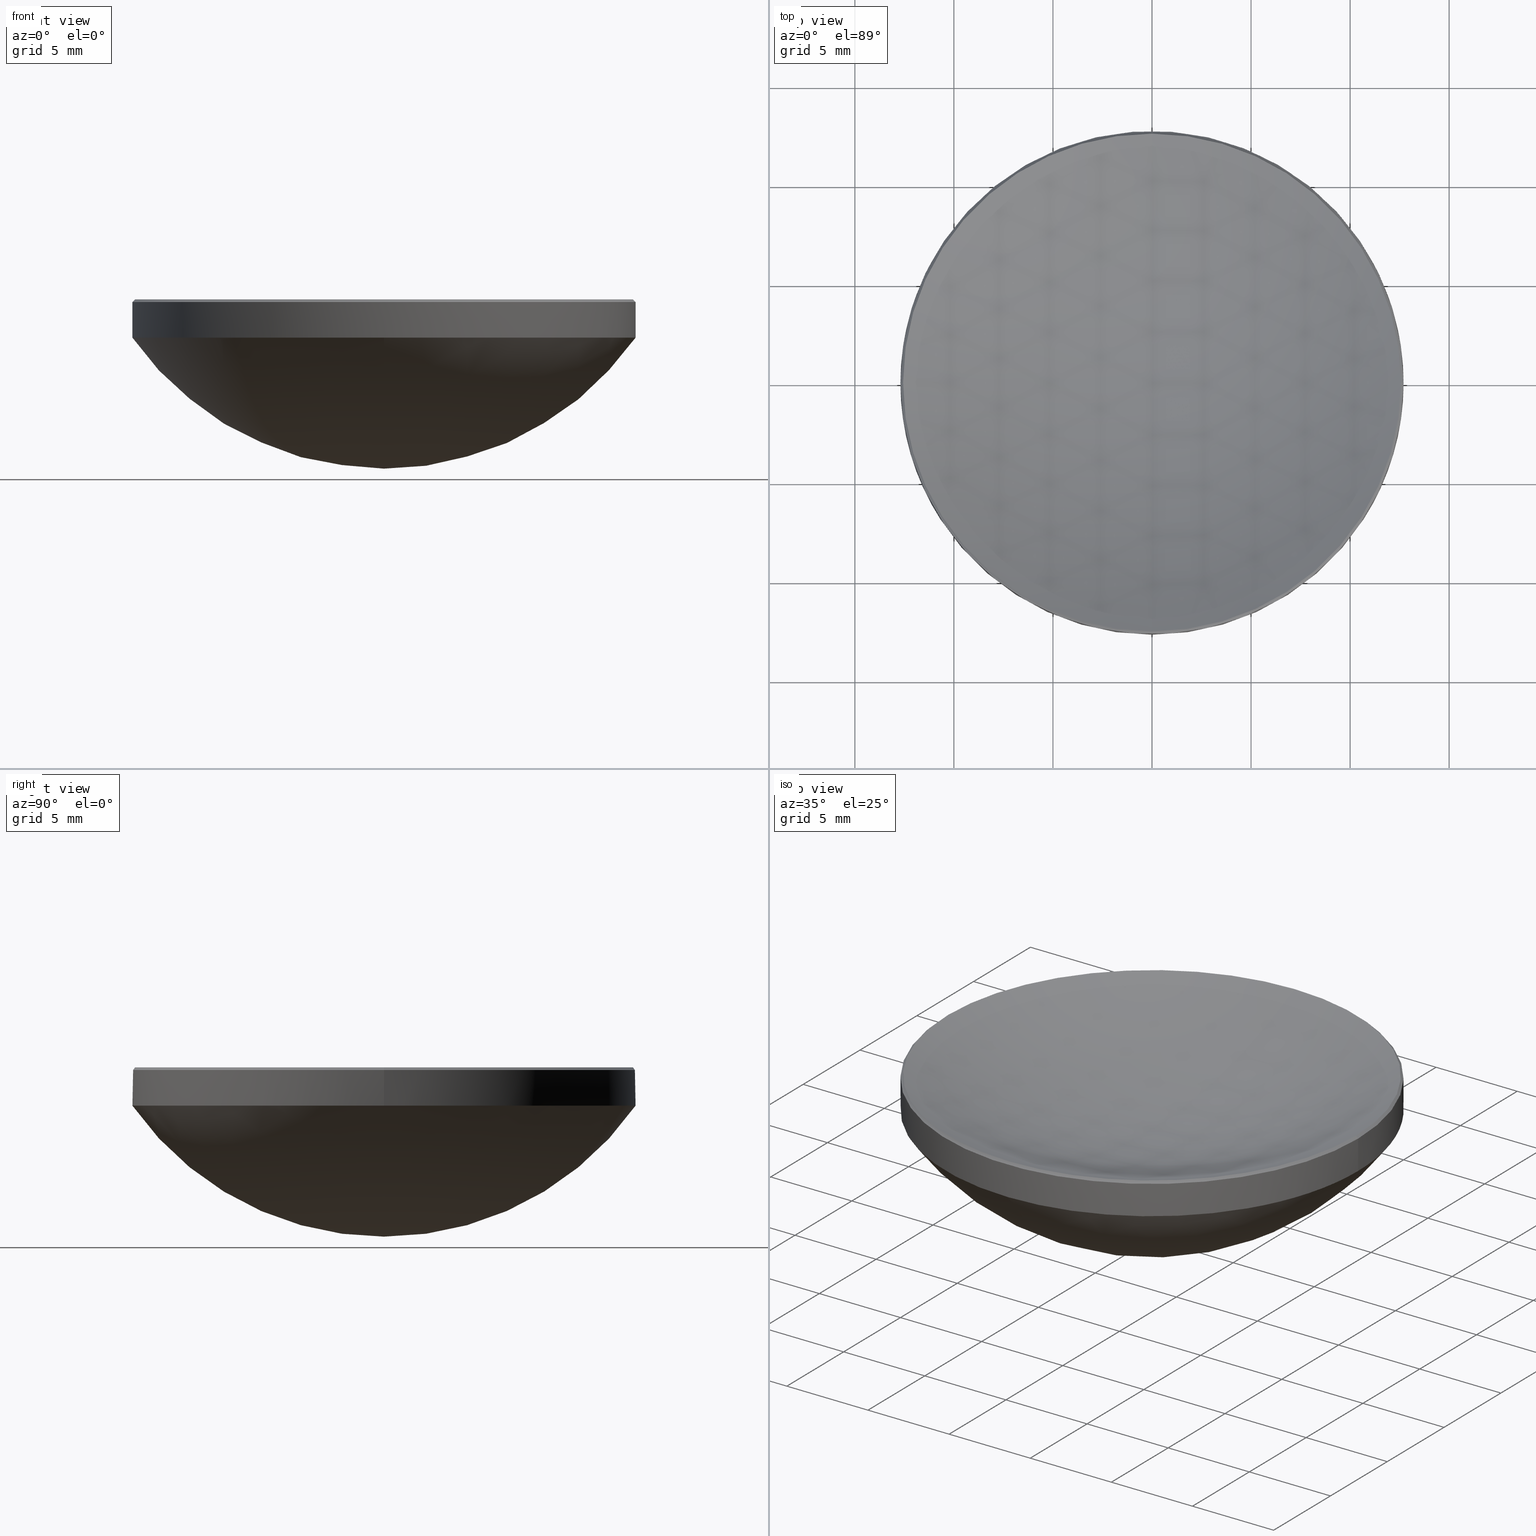
[diagram: canonical four-view strip — front | top / right | iso, engineering-drawing reading convention]
A machine part, canonical four-view strip (front | top / right | iso — engineering-drawing reading convention). The complete STEP part file that produces these views, byte-faithful:
ISO-10303-21;
HEADER;
FILE_DESCRIPTION (( 'STEP AP214' ),
    '1' );
FILE_NAME ('GLM5-025B-075-IR1.STEP',
    '2024-08-09T03:09:39',
    ( 'Windows User' ),
    ( 'P R C' ),
    'SwSTEP 2.0',
    'SolidWorks 2022',
    '' );
FILE_SCHEMA (( 'AUTOMOTIVE_DESIGN' ));
ENDSEC;

DATA;
#1 = STYLED_ITEM ( 'NONE', ( #249 ), #150 ) ;
#2 = ORIENTED_EDGE ( 'NONE', *, *, #112, .T. ) ;
#3 = VECTOR ( 'NONE', #250, 1000.000000000000000 ) ;
#4 = ORIENTED_EDGE ( 'NONE', *, *, #64, .T. ) ;
#5 = DIRECTION ( 'NONE',  ( 0.000000000000000000, 0.000000000000000000, 1.000000000000000000 ) ) ;
#6 = ORIENTED_EDGE ( 'NONE', *, *, #167, .F. ) ;
#7 = EDGE_CURVE ( 'NONE', #265, #219, #257, .T. ) ;
#8 = ORIENTED_EDGE ( 'NONE', *, *, #40, .T. ) ;
#9 = VERTEX_POINT ( 'NONE', #266 ) ;
#10 = CARTESIAN_POINT ( 'NONE',  ( -1.539033449312763562E-15, -12.56716181665030874, 11.93283818334969126 ) ) ;
#11 = CARTESIAN_POINT ( 'NONE',  ( 0.000000000000000000, 0.000000000000000000, 11.93283818334968771 ) ) ;
#12 = EDGE_CURVE ( 'NONE', #198, #106, #65, .T. ) ;
#13 = CARTESIAN_POINT ( 'NONE',  ( 0.000000000000000000, 12.69999999999999574, 10.00000000000000000 ) ) ;
#14 = CYLINDRICAL_SURFACE ( 'NONE', #170, 12.69999999999999929 ) ;
#15 = CIRCLE ( 'NONE', #270, 12.56716181665030341 ) ;
#16 = DIRECTION ( 'NONE',  ( -0.000000000000000000, -0.000000000000000000, -1.000000000000000000 ) ) ;
#17 = FILL_AREA_STYLE_COLOUR ( '', #125 ) ;
#18 = PRESENTATION_LAYER_ASSIGNMENT (  '', '', ( #259 ) ) ;
#19 = FACE_OUTER_BOUND ( 'NONE', #93, .T. ) ;
#20 = ORIENTED_EDGE ( 'NONE', *, *, #140, .T. ) ;
#21 = AXIS2_PLACEMENT_3D ( 'NONE', #247, #141, #226 ) ;
#22 = EDGE_CURVE ( 'NONE', #197, #242, #192, .T. ) ;
#23 = EDGE_LOOP ( 'NONE', ( #175, #267, #216, #6 ) ) ;
#24 = ORIENTED_EDGE ( 'NONE', *, *, #167, .T. ) ;
#25 = AXIS2_PLACEMENT_3D ( 'NONE', #69, #237, #239 ) ;
#26 = ORIENTED_EDGE ( 'NONE', *, *, #90, .F. ) ;
#27 = CIRCLE ( 'NONE', #92, 27.99999999999999645 ) ;
#28 = ORIENTED_EDGE ( 'NONE', *, *, #258, .T. ) ;
#29 = ORIENTED_EDGE ( 'NONE', *, *, #118, .T. ) ;
#30 = UNCERTAINTY_MEASURE_WITH_UNIT (LENGTH_MEASURE( 1.000000000000000082E-05 ), #227, 'distance_accuracy_value', 'NONE');
#31 = DIRECTION ( 'NONE',  ( 1.000000000000000000, 0.000000000000000000, 0.000000000000000000 ) ) ;
#32 = ADVANCED_FACE ( 'NONE', ( #174 ), #89, .T. ) ;
#33 = FACE_OUTER_BOUND ( 'NONE', #189, .T. ) ;
#34 = CIRCLE ( 'NONE', #59, 12.69999999999999929 ) ;
#35 = SURFACE_STYLE_USAGE ( .BOTH. , #200 ) ;
#36 = CARTESIAN_POINT ( 'NONE',  ( -12.69999999999999929, 0.000000000000000000, 20.00000000000000000 ) ) ;
#37 = DIRECTION ( 'NONE',  ( 1.000000000000000000, 0.000000000000000000, 0.000000000000000000 ) ) ;
#38 = FILL_AREA_STYLE ('',( #17 ) ) ;
#39 = FILL_AREA_STYLE ('',( #164 ) ) ;
#40 = EDGE_CURVE ( 'NONE', #48, #222, #15, .T. ) ;
#41 = CARTESIAN_POINT ( 'NONE',  ( 0.000000000000000000, 0.000000000000000000, 36.95415797016601545 ) ) ;
#42 = CARTESIAN_POINT ( 'NONE',  ( 0.000000000000000000, 12.56716181665030874, 11.93283818334969126 ) ) ;
#43 =( GEOMETRIC_REPRESENTATION_CONTEXT ( 3 ) GLOBAL_UNCERTAINTY_ASSIGNED_CONTEXT ( ( #248 ) ) GLOBAL_UNIT_ASSIGNED_CONTEXT ( ( #80, #147, #209 ) ) REPRESENTATION_CONTEXT ( 'NONE', 'WORKASPACE' ) );
#44 = EDGE_CURVE ( 'NONE', #242, #187, #218, .T. ) ;
#45 = EDGE_LOOP ( 'NONE', ( #154, #130, #166, #28 ) ) ;
#46 = AXIS2_PLACEMENT_3D ( 'NONE', #104, #117, #181 ) ;
#47 = CARTESIAN_POINT ( 'NONE',  ( 0.000000000000000000, 0.000000000000000000, 36.95415797016601545 ) ) ;
#48 = VERTEX_POINT ( 'NONE', #10 ) ;
#49 = ORIENTED_EDGE ( 'NONE', *, *, #107, .T. ) ;
#50 = EDGE_CURVE ( 'NONE', #111, #219, #100, .T. ) ;
#51 = SHAPE_DEFINITION_REPRESENTATION ( #138, #150 ) ;
#52 = ORIENTED_EDGE ( 'NONE', *, *, #214, .F. ) ;
#53 = ORIENTED_EDGE ( 'NONE', *, *, #214, .T. ) ;
#54 = DIRECTION ( 'NONE',  ( 0.000000000000000000, 0.000000000000000000, -1.000000000000000000 ) ) ;
#55 = CARTESIAN_POINT ( 'NONE',  ( 0.000000000000000000, 0.000000000000000000, 11.79999999999999183 ) ) ;
#56 = FACE_OUTER_BOUND ( 'NONE', #279, .T. ) ;
#57 = FACE_OUTER_BOUND ( 'NONE', #153, .T. ) ;
#58 = DIRECTION ( 'NONE',  ( 1.000000000000000000, 0.000000000000000000, 0.000000000000000000 ) ) ;
#59 = AXIS2_PLACEMENT_3D ( 'NONE', #55, #54, #137 ) ;
#60 = EDGE_CURVE ( 'NONE', #111, #106, #86, .T. ) ;
#61 = DIRECTION ( 'NONE',  ( 0.000000000000000000, 1.000000000000000000, 0.000000000000000000 ) ) ;
#62 = CYLINDRICAL_SURFACE ( 'NONE', #88, 12.69999999999999929 ) ;
#63 = PRESENTATION_STYLE_ASSIGNMENT (( #35 ) ) ;
#64 = EDGE_CURVE ( 'NONE', #9, #265, #98, .T. ) ;
#65 = CIRCLE ( 'NONE', #236, 12.69999999999999751 ) ;
#66 = VECTOR ( 'NONE', #144, 999.9999999999998863 ) ;
#67 = DIRECTION ( 'NONE',  ( -1.000000000000000000, 0.000000000000000000, 0.000000000000000000 ) ) ;
#68 = PRODUCT_DEFINITION ( 'δ֪', '', #235, #157 ) ;
#69 = CARTESIAN_POINT ( 'NONE',  ( 0.000000000000000000, 0.000000000000000000, 10.00000000000000000 ) ) ;
#70 = DIRECTION ( 'NONE',  ( 0.000000000000000000, 0.000000000000000000, -1.000000000000000000 ) ) ;
#71 = CARTESIAN_POINT ( 'NONE',  ( 0.000000000000000000, 0.000000000000000000, 10.00000000000000000 ) ) ;
#72 = ORIENTED_EDGE ( 'NONE', *, *, #188, .F. ) ;
#73 = CARTESIAN_POINT ( 'NONE',  ( 0.000000000000000000, 0.000000000000000000, 18.88594395660922487 ) ) ;
#74 = CARTESIAN_POINT ( 'NONE',  ( 0.000000000000000000, 0.000000000000000000, 11.93283818334969126 ) ) ;
#75 = AXIS2_PLACEMENT_3D ( 'NONE', #262, #67, #114 ) ;
#76 = UNCERTAINTY_MEASURE_WITH_UNIT (LENGTH_MEASURE( 1.000000000000000082E-05 ), #84, 'distance_accuracy_value', 'NONE');
#77 = SURFACE_STYLE_USAGE ( .BOTH. , #213 ) ;
#78 = DIRECTION ( 'NONE',  ( 0.000000000000000000, 0.000000000000000000, -1.000000000000000000 ) ) ;
#79 = CARTESIAN_POINT ( 'NONE',  ( 12.69999999999999929, 1.555301434917138433E-15, 11.79999999999999183 ) ) ;
#80 =( LENGTH_UNIT ( ) NAMED_UNIT ( * ) SI_UNIT ( .MILLI., .METRE. ) );
#81 = AXIS2_PLACEMENT_3D ( 'NONE', #11, #148, #105 ) ;
#82 = CARTESIAN_POINT ( 'NONE',  ( -1.555301434917138038E-15, -12.69999999999999574, 10.00000000000000000 ) ) ;
#83 = DIRECTION ( 'NONE',  ( -1.000000000000000000, 0.000000000000000000, 0.000000000000000000 ) ) ;
#84 =( LENGTH_UNIT ( ) NAMED_UNIT ( * ) SI_UNIT ( .MILLI., .METRE. ) );
#85 = CIRCLE ( 'NONE', #151, 12.69999999999999751 ) ;
#86 = CIRCLE ( 'NONE', #126, 15.49999999999999645 ) ;
#87 = EDGE_CURVE ( 'NONE', #9, #172, #243, .T. ) ;
#88 = AXIS2_PLACEMENT_3D ( 'NONE', #145, #16, #185 ) ;
#89 = SPHERICAL_SURFACE ( 'NONE', #75, 15.49999999999999645 ) ;
#90 = EDGE_CURVE ( 'NONE', #222, #172, #143, .T. ) ;
#91 = ORIENTED_EDGE ( 'NONE', *, *, #112, .F. ) ;
#92 = AXIS2_PLACEMENT_3D ( 'NONE', #278, #115, #234 ) ;
#93 = EDGE_LOOP ( 'NONE', ( #95, #20, #8, #49 ) ) ;
#94 = ORIENTED_EDGE ( 'NONE', *, *, #258, .F. ) ;
#95 = ORIENTED_EDGE ( 'NONE', *, *, #22, .F. ) ;
#96 = CARTESIAN_POINT ( 'NONE',  ( 0.000000000000000000, 0.000000000000000000, 18.88594395660922487 ) ) ;
#97 = CARTESIAN_POINT ( 'NONE',  ( 12.69999999999999751, 1.555301434917138235E-15, 10.00000000000000000 ) ) ;
#98 = LINE ( 'NONE', #36, #3 ) ;
#99 = DIRECTION ( 'NONE',  ( 1.000000000000000000, 0.000000000000000000, 0.000000000000000000 ) ) ;
#100 = CIRCLE ( 'NONE', #206, 15.49999999999999645 ) ;
#101 = DIRECTION ( 'NONE',  ( 0.000000000000000000, 1.000000000000000000, 0.000000000000000000 ) ) ;
#102 =( NAMED_UNIT ( * ) SI_UNIT ( $, .STERADIAN. ) SOLID_ANGLE_UNIT ( ) );
#103 = AXIS2_PLACEMENT_3D ( 'NONE', #274, #83, #61 ) ;
#104 = CARTESIAN_POINT ( 'NONE',  ( 0.000000000000000000, 0.000000000000000000, 11.93283818334968771 ) ) ;
#105 = DIRECTION ( 'NONE',  ( -1.000000000000000000, 0.000000000000000000, 0.000000000000000000 ) ) ;
#106 = VERTEX_POINT ( 'NONE', #13 ) ;
#107 = EDGE_CURVE ( 'NONE', #222, #242, #238, .T. ) ;
#108 = CLOSED_SHELL ( 'NONE', ( #128, #208, #282, #261, #149, #251, #32, #183 ) ) ;
#109 = ORIENTED_EDGE ( 'NONE', *, *, #40, .F. ) ;
#110 = ORIENTED_EDGE ( 'NONE', *, *, #107, .F. ) ;
#111 = VERTEX_POINT ( 'NONE', #156 ) ;
#112 = EDGE_CURVE ( 'NONE', #172, #9, #34, .T. ) ;
#113 = ORIENTED_EDGE ( 'NONE', *, *, #7, .F. ) ;
#114 = DIRECTION ( 'NONE',  ( 0.000000000000000000, 1.000000000000000000, 0.000000000000000000 ) ) ;
#115 = DIRECTION ( 'NONE',  ( -1.000000000000000000, 1.224646799147353207E-16, 0.000000000000000000 ) ) ;
#116 = CARTESIAN_POINT ( 'NONE',  ( 0.000000000000000000, 0.000000000000000000, 10.00000000000000000 ) ) ;
#117 = DIRECTION ( 'NONE',  ( 0.000000000000000000, 0.000000000000000000, -1.000000000000000000 ) ) ;
#118 = EDGE_CURVE ( 'NONE', #106, #265, #85, .T. ) ;
#119 = DIRECTION ( 'NONE',  ( 1.000000000000000000, 0.000000000000000000, 0.000000000000000000 ) ) ;
#120 = SPHERICAL_SURFACE ( 'NONE', #103, 15.49999999999999645 ) ;
#121 = DIRECTION ( 'NONE',  ( -1.000000000000000000, 0.000000000000000000, 0.000000000000000000 ) ) ;
#122 = AXIS2_PLACEMENT_3D ( 'NONE', #41, #121, #101 ) ;
#123 = DIRECTION ( 'NONE',  ( -0.000000000000000000, -0.000000000000000000, 1.000000000000000000 ) ) ;
#124 = SURFACE_STYLE_FILL_AREA ( #38 ) ;
#125 = COLOUR_RGB ( '',1.000000000000000000, 1.000000000000000000, 1.000000000000000000 ) ;
#126 = AXIS2_PLACEMENT_3D ( 'NONE', #73, #268, #162 ) ;
#127 = AXIS2_PLACEMENT_3D ( 'NONE', #228, #159, #244 ) ;
#128 = ADVANCED_FACE ( 'NONE', ( #33 ), #215, .T. ) ;
#129 = ORIENTED_EDGE ( 'NONE', *, *, #44, .F. ) ;
#130 = ORIENTED_EDGE ( 'NONE', *, *, #22, .T. ) ;
#131 = ORIENTED_EDGE ( 'NONE', *, *, #188, .T. ) ;
#132 = PRODUCT_CONTEXT ( 'NONE', #230, 'mechanical' ) ;
#133 = ORIENTED_EDGE ( 'NONE', *, *, #64, .F. ) ;
#134 = COLOUR_RGB ( '',1.000000000000000000, 1.000000000000000000, 1.000000000000000000 ) ;
#135 = APPLICATION_PROTOCOL_DEFINITION ( 'draft international standard', 'automotive_design', 1998, #280 ) ;
#136 = EDGE_LOOP ( 'NONE', ( #26, #109, #94, #53, #91 ) ) ;
#137 = DIRECTION ( 'NONE',  ( 1.000000000000000000, 0.000000000000000000, 0.000000000000000000 ) ) ;
#138 = PRODUCT_DEFINITION_SHAPE ( 'NONE', 'NONE',  #68 ) ;
#139 = DIRECTION ( 'NONE',  ( 1.000000000000000000, 0.000000000000000000, 0.000000000000000000 ) ) ;
#140 = EDGE_CURVE ( 'NONE', #197, #48, #27, .T. ) ;
#141 = DIRECTION ( 'NONE',  ( -1.000000000000000000, 0.000000000000000000, 0.000000000000000000 ) ) ;
#142 = VECTOR ( 'NONE', #277, 1000.000000000000000 ) ;
#143 = LINE ( 'NONE', #178, #253 ) ;
#144 = DIRECTION ( 'NONE',  ( -0.7071067811865430208, 0.000000000000000000, -0.7071067811865521247 ) ) ;
#145 = CARTESIAN_POINT ( 'NONE',  ( 0.000000000000000000, 0.000000000000000000, 20.00000000000000000 ) ) ;
#146 = CARTESIAN_POINT ( 'NONE',  ( 0.000000000000000000, 0.000000000000000000, 20.00000000000000000 ) ) ;
#147 =( NAMED_UNIT ( * ) PLANE_ANGLE_UNIT ( ) SI_UNIT ( $, .RADIAN. ) );
#148 = DIRECTION ( 'NONE',  ( 0.000000000000000000, 0.000000000000000000, -1.000000000000000000 ) ) ;
#149 = ADVANCED_FACE ( 'NONE', ( #56 ), #14, .T. ) ;
#150 = ADVANCED_BREP_SHAPE_REPRESENTATION ( 'GLM5-025B-075-IR1', ( #169, #212 ), #43 ) ;
#151 = AXIS2_PLACEMENT_3D ( 'NONE', #116, #223, #139 ) ;
#152 = ORIENTED_EDGE ( 'NONE', *, *, #7, .T. ) ;
#153 = EDGE_LOOP ( 'NONE', ( #281, #131, #240, #29, #133 ) ) ;
#154 = ORIENTED_EDGE ( 'NONE', *, *, #140, .F. ) ;
#155 = DIRECTION ( 'NONE',  ( 1.000000000000000000, 0.000000000000000000, 0.000000000000000000 ) ) ;
#156 = CARTESIAN_POINT ( 'NONE',  ( 0.000000000000000000, 9.491012693391985815E-16, 3.385943956609228422 ) ) ;
#157 = PRODUCT_DEFINITION_CONTEXT ( 'detailed design', #280, 'design' ) ;
#158 = PRESENTATION_LAYER_ASSIGNMENT (  '', '', ( #1 ) ) ;
#159 = DIRECTION ( 'NONE',  ( -0.000000000000000000, -0.000000000000000000, 1.000000000000000000 ) ) ;
#160 = SPHERICAL_SURFACE ( 'NONE', #21, 27.99999999999999645 ) ;
#161 = APPLICATION_PROTOCOL_DEFINITION ( 'draft international standard', 'automotive_design', 1998, #230 ) ;
#162 = DIRECTION ( 'NONE',  ( 0.000000000000000000, 0.000000000000000000, -1.000000000000000000 ) ) ;
#163 = AXIS2_PLACEMENT_3D ( 'NONE', #74, #229, #37 ) ;
#164 = FILL_AREA_STYLE_COLOUR ( '', #134 ) ;
#165 = DIRECTION ( 'NONE',  ( -1.000000000000000000, 0.000000000000000000, 0.000000000000000000 ) ) ;
#166 = ORIENTED_EDGE ( 'NONE', *, *, #44, .T. ) ;
#167 = EDGE_CURVE ( 'NONE', #219, #198, #182, .T. ) ;
#168 = AXIS2_PLACEMENT_3D ( 'NONE', #180, #271, #31 ) ;
#169 = MANIFOLD_SOLID_BREP ( '����1', #108 ) ;
#170 = AXIS2_PLACEMENT_3D ( 'NONE', #146, #184, #165 ) ;
#171 = ORIENTED_EDGE ( 'NONE', *, *, #60, .F. ) ;
#172 = VERTEX_POINT ( 'NONE', #79 ) ;
#173 = AXIS2_PLACEMENT_3D ( 'NONE', #202, #123, #99 ) ;
#174 = FACE_OUTER_BOUND ( 'NONE', #23, .T. ) ;
#175 = ORIENTED_EDGE ( 'NONE', *, *, #50, .F. ) ;
#176 = DIRECTION ( 'NONE',  ( 1.000000000000000000, 0.000000000000000000, 0.000000000000000000 ) ) ;
#177 = DIRECTION ( 'NONE',  ( 1.000000000000000000, 0.000000000000000000, 0.000000000000000000 ) ) ;
#178 = CARTESIAN_POINT ( 'NONE',  ( 12.56716181665030518, 1.539033449312763168E-15, 11.93283818334968771 ) ) ;
#179 = FACE_OUTER_BOUND ( 'NONE', #217, .T. ) ;
#180 = CARTESIAN_POINT ( 'NONE',  ( 0.000000000000000000, 0.000000000000000000, 11.93283818334969126 ) ) ;
#181 = DIRECTION ( 'NONE',  ( -1.000000000000000000, 0.000000000000000000, 0.000000000000000000 ) ) ;
#182 = CIRCLE ( 'NONE', #173, 12.69999999999999751 ) ;
#183 = ADVANCED_FACE ( 'NONE', ( #252 ), #196, .T. ) ;
#184 = DIRECTION ( 'NONE',  ( -0.000000000000000000, -0.000000000000000000, -1.000000000000000000 ) ) ;
#185 = DIRECTION ( 'NONE',  ( -1.000000000000000000, 0.000000000000000000, 0.000000000000000000 ) ) ;
#186 = LINE ( 'NONE', #255, #142 ) ;
#187 = VERTEX_POINT ( 'NONE', #256 ) ;
#188 = EDGE_CURVE ( 'NONE', #172, #198, #186, .T. ) ;
#189 = EDGE_LOOP ( 'NONE', ( #110, #220, #241, #52, #129 ) ) ;
#190 = PRODUCT ( 'GLM5-025B-075-IR1', 'GLM5-025B-075-IR1', '', ( #132 ) ) ;
#191 = CARTESIAN_POINT ( 'NONE',  ( 0.000000000000000000, 0.000000000000000000, 11.93283818334969126 ) ) ;
#192 = CIRCLE ( 'NONE', #245, 27.99999999999999645 ) ;
#193 = ORIENTED_EDGE ( 'NONE', *, *, #118, .F. ) ;
#194 = PRODUCT_RELATED_PRODUCT_CATEGORY ( 'part', '', ( #190 ) ) ;
#195 = DIRECTION ( 'NONE',  ( -0.000000000000000000, -0.000000000000000000, 1.000000000000000000 ) ) ;
#196 = CONICAL_SURFACE ( 'NONE', #81, 12.56716181665030518, 0.7853981633974418397 ) ;
#197 = VERTEX_POINT ( 'NONE', #231 ) ;
#198 = VERTEX_POINT ( 'NONE', #97 ) ;
#199 = DIRECTION ( 'NONE',  ( -0.000000000000000000, -0.000000000000000000, 1.000000000000000000 ) ) ;
#200 = SURFACE_SIDE_STYLE ('',( #207 ) ) ;
#201 = DIRECTION ( 'NONE',  ( 0.7071067811865430208, 8.659560562354877391E-17, -0.7071067811865521247 ) ) ;
#202 = CARTESIAN_POINT ( 'NONE',  ( 0.000000000000000000, 0.000000000000000000, 10.00000000000000000 ) ) ;
#203 =( GEOMETRIC_REPRESENTATION_CONTEXT ( 3 ) GLOBAL_UNCERTAINTY_ASSIGNED_CONTEXT ( ( #30 ) ) GLOBAL_UNIT_ASSIGNED_CONTEXT ( ( #227, #204, #276 ) ) REPRESENTATION_CONTEXT ( 'NONE', 'WORKASPACE' ) );
#204 =( NAMED_UNIT ( * ) PLANE_ANGLE_UNIT ( ) SI_UNIT ( $, .RADIAN. ) );
#205 = CARTESIAN_POINT ( 'NONE',  ( 0.000000000000000000, 0.000000000000000000, 11.79999999999999183 ) ) ;
#206 = AXIS2_PLACEMENT_3D ( 'NONE', #96, #225, #246 ) ;
#207 = SURFACE_STYLE_FILL_AREA ( #39 ) ;
#208 = ADVANCED_FACE ( 'NONE', ( #179 ), #120, .T. ) ;
#209 =( NAMED_UNIT ( * ) SI_UNIT ( $, .STERADIAN. ) SOLID_ANGLE_UNIT ( ) );
#210 = MECHANICAL_DESIGN_GEOMETRIC_PRESENTATION_REPRESENTATION (  '', ( #259 ), #263 ) ;
#211 = CARTESIAN_POINT ( 'NONE',  ( -12.56716181665030518, 0.000000000000000000, 11.93283818334968771 ) ) ;
#212 = AXIS2_PLACEMENT_3D ( 'NONE', #224, #5, #176 ) ;
#213 = SURFACE_SIDE_STYLE ('',( #124 ) ) ;
#214 = EDGE_CURVE ( 'NONE', #187, #9, #269, .T. ) ;
#215 = CONICAL_SURFACE ( 'NONE', #46, 12.56716181665030518, 0.7853981633974418397 ) ;
#216 = ORIENTED_EDGE ( 'NONE', *, *, #12, .F. ) ;
#217 = EDGE_LOOP ( 'NONE', ( #171, #264, #113, #193 ) ) ;
#218 = CIRCLE ( 'NONE', #168, 12.56716181665030341 ) ;
#219 = VERTEX_POINT ( 'NONE', #82 ) ;
#220 = ORIENTED_EDGE ( 'NONE', *, *, #90, .T. ) ;
#221 = CIRCLE ( 'NONE', #163, 12.56716181665030341 ) ;
#222 = VERTEX_POINT ( 'NONE', #233 ) ;
#223 = DIRECTION ( 'NONE',  ( -0.000000000000000000, -0.000000000000000000, 1.000000000000000000 ) ) ;
#224 = CARTESIAN_POINT ( 'NONE',  ( 0.000000000000000000, 0.000000000000000000, 0.000000000000000000 ) ) ;
#225 = DIRECTION ( 'NONE',  ( -1.000000000000000000, 1.224646799147353207E-16, 0.000000000000000000 ) ) ;
#226 = DIRECTION ( 'NONE',  ( 0.000000000000000000, 1.000000000000000000, 0.000000000000000000 ) ) ;
#227 =( LENGTH_UNIT ( ) NAMED_UNIT ( * ) SI_UNIT ( .MILLI., .METRE. ) );
#228 = CARTESIAN_POINT ( 'NONE',  ( 0.000000000000000000, 0.000000000000000000, 11.93283818334969126 ) ) ;
#229 = DIRECTION ( 'NONE',  ( -0.000000000000000000, -0.000000000000000000, 1.000000000000000000 ) ) ;
#230 = APPLICATION_CONTEXT ( 'automotive_design' ) ;
#231 = CARTESIAN_POINT ( 'NONE',  ( 0.000000000000000000, 1.714505518806294441E-15, 8.954157970166020775 ) ) ;
#232 = SPHERICAL_SURFACE ( 'NONE', #122, 27.99999999999999645 ) ;
#233 = CARTESIAN_POINT ( 'NONE',  ( 12.56716181665030341, 1.547167442114950603E-15, 11.93283818334969126 ) ) ;
#234 = DIRECTION ( 'NONE',  ( -1.224646799147353207E-16, -1.000000000000000000, 0.000000000000000000 ) ) ;
#235 = PRODUCT_DEFINITION_FORMATION_WITH_SPECIFIED_SOURCE ( '�κ�', '', #190, .NOT_KNOWN. ) ;
#236 = AXIS2_PLACEMENT_3D ( 'NONE', #71, #195, #177 ) ;
#237 = DIRECTION ( 'NONE',  ( -0.000000000000000000, -0.000000000000000000, 1.000000000000000000 ) ) ;
#238 = CIRCLE ( 'NONE', #127, 12.56716181665030341 ) ;
#239 = DIRECTION ( 'NONE',  ( 1.000000000000000000, 0.000000000000000000, 0.000000000000000000 ) ) ;
#240 = ORIENTED_EDGE ( 'NONE', *, *, #12, .T. ) ;
#241 = ORIENTED_EDGE ( 'NONE', *, *, #87, .F. ) ;
#242 = VERTEX_POINT ( 'NONE', #42 ) ;
#243 = CIRCLE ( 'NONE', #275, 12.69999999999999929 ) ;
#244 = DIRECTION ( 'NONE',  ( 1.000000000000000000, 0.000000000000000000, 0.000000000000000000 ) ) ;
#245 = AXIS2_PLACEMENT_3D ( 'NONE', #47, #155, #70 ) ;
#246 = DIRECTION ( 'NONE',  ( -1.224646799147353207E-16, -1.000000000000000000, 0.000000000000000000 ) ) ;
#247 = CARTESIAN_POINT ( 'NONE',  ( 0.000000000000000000, 0.000000000000000000, 36.95415797016601545 ) ) ;
#248 = UNCERTAINTY_MEASURE_WITH_UNIT (LENGTH_MEASURE( 1.000000000000000082E-05 ), #80, 'distance_accuracy_value', 'NONE');
#249 = PRESENTATION_STYLE_ASSIGNMENT (( #77 ) ) ;
#250 = DIRECTION ( 'NONE',  ( -0.000000000000000000, -0.000000000000000000, -1.000000000000000000 ) ) ;
#251 = ADVANCED_FACE ( 'NONE', ( #272 ), #160, .F. ) ;
#252 = FACE_OUTER_BOUND ( 'NONE', #136, .T. ) ;
#253 = VECTOR ( 'NONE', #201, 999.9999999999998863 ) ;
#254 =( NAMED_UNIT ( * ) PLANE_ANGLE_UNIT ( ) SI_UNIT ( $, .RADIAN. ) );
#255 = CARTESIAN_POINT ( 'NONE',  ( 12.69999999999999929, 1.555301434917138433E-15, 20.00000000000000000 ) ) ;
#256 = CARTESIAN_POINT ( 'NONE',  ( -12.56716181665030341, 0.000000000000000000, 11.93283818334969126 ) ) ;
#257 = CIRCLE ( 'NONE', #25, 12.69999999999999751 ) ;
#258 = EDGE_CURVE ( 'NONE', #187, #48, #221, .T. ) ;
#259 = STYLED_ITEM ( 'NONE', ( #63 ), #169 ) ;
#260 = MECHANICAL_DESIGN_GEOMETRIC_PRESENTATION_REPRESENTATION (  '', ( #1 ), #203 ) ;
#261 = ADVANCED_FACE ( 'NONE', ( #57 ), #62, .T. ) ;
#262 = CARTESIAN_POINT ( 'NONE',  ( 0.000000000000000000, 0.000000000000000000, 18.88594395660922487 ) ) ;
#263 =( GEOMETRIC_REPRESENTATION_CONTEXT ( 3 ) GLOBAL_UNCERTAINTY_ASSIGNED_CONTEXT ( ( #76 ) ) GLOBAL_UNIT_ASSIGNED_CONTEXT ( ( #84, #254, #102 ) ) REPRESENTATION_CONTEXT ( 'NONE', 'WORKASPACE' ) );
#264 = ORIENTED_EDGE ( 'NONE', *, *, #50, .T. ) ;
#265 = VERTEX_POINT ( 'NONE', #273 ) ;
#266 = CARTESIAN_POINT ( 'NONE',  ( -12.69999999999999929, 0.000000000000000000, 11.79999999999999183 ) ) ;
#267 = ORIENTED_EDGE ( 'NONE', *, *, #60, .T. ) ;
#268 = DIRECTION ( 'NONE',  ( 1.000000000000000000, -0.000000000000000000, 0.000000000000000000 ) ) ;
#269 = LINE ( 'NONE', #211, #66 ) ;
#270 = AXIS2_PLACEMENT_3D ( 'NONE', #191, #199, #119 ) ;
#271 = DIRECTION ( 'NONE',  ( -0.000000000000000000, -0.000000000000000000, 1.000000000000000000 ) ) ;
#272 = FACE_OUTER_BOUND ( 'NONE', #45, .T. ) ;
#273 = CARTESIAN_POINT ( 'NONE',  ( -12.69999999999999751, 0.000000000000000000, 10.00000000000000000 ) ) ;
#274 = CARTESIAN_POINT ( 'NONE',  ( 0.000000000000000000, 0.000000000000000000, 18.88594395660922487 ) ) ;
#275 = AXIS2_PLACEMENT_3D ( 'NONE', #205, #78, #58 ) ;
#276 =( NAMED_UNIT ( * ) SI_UNIT ( $, .STERADIAN. ) SOLID_ANGLE_UNIT ( ) );
#277 = DIRECTION ( 'NONE',  ( -0.000000000000000000, -0.000000000000000000, -1.000000000000000000 ) ) ;
#278 = CARTESIAN_POINT ( 'NONE',  ( 0.000000000000000000, 0.000000000000000000, 36.95415797016601545 ) ) ;
#279 = EDGE_LOOP ( 'NONE', ( #72, #2, #4, #152, #24 ) ) ;
#280 = APPLICATION_CONTEXT ( 'automotive_design' ) ;
#281 = ORIENTED_EDGE ( 'NONE', *, *, #87, .T. ) ;
#282 = ADVANCED_FACE ( 'NONE', ( #19 ), #232, .F. ) ;
ENDSEC;
END-ISO-10303-21;
